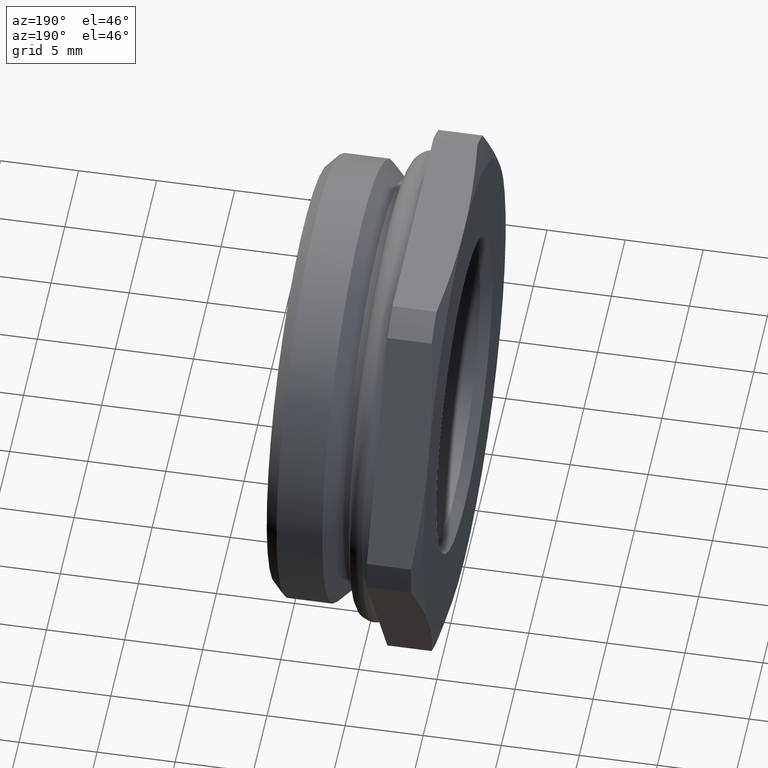
[diagram: clean part render]
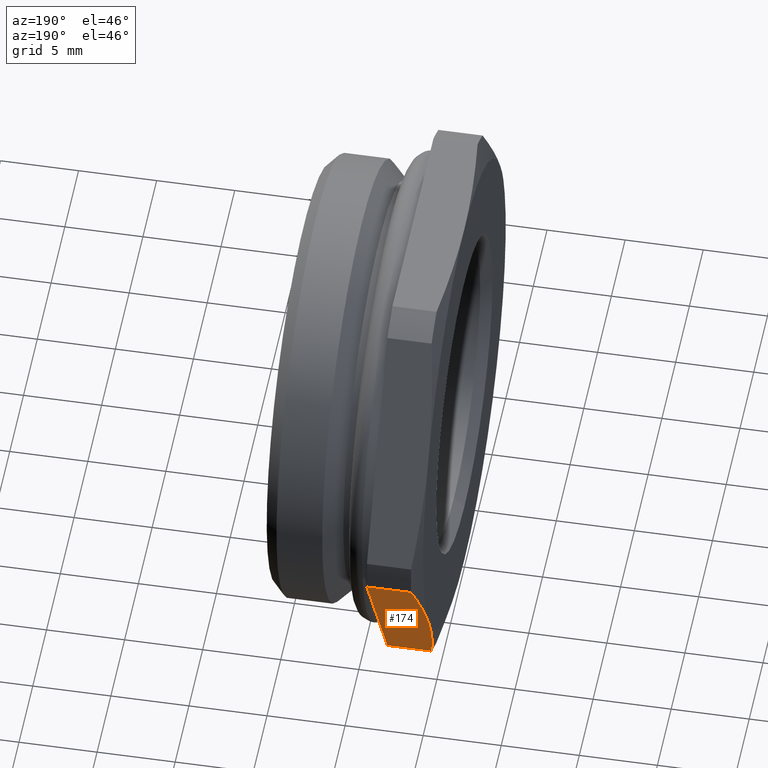
[diagram: same view with one face highlighted and labeled with its STEP entity id]
A machine part, auxiliary view. The second image highlights one B-rep face of the part: STEP entity #174.
In plain terms, the highlighted planar face has unit normal (0, -0.866, 0.5).
Its self-contained STEP definition (entity closure, byte-faithful):
#174 = ADVANCED_FACE( '', ( #214 ), #215, .F. );
#214 = FACE_OUTER_BOUND( '', #289, .T. );
#215 = PLANE( '', #290 );
#289 = EDGE_LOOP( '', ( #399, #400, #401, #402, #403 ) );
#290 = AXIS2_PLACEMENT_3D( '', #404, #405, #406 );
#399 = ORIENTED_EDGE( '', *, *, #591, .F. );
#400 = ORIENTED_EDGE( '', *, *, #590, .F. );
#401 = ORIENTED_EDGE( '', *, *, #592, .F. );
#402 = ORIENTED_EDGE( '', *, *, #593, .F. );
#403 = ORIENTED_EDGE( '', *, *, #594, .F. );
#404 = CARTESIAN_POINT( '', ( 5.00000000000000, 8.66025403784439, -15.0000000000000 ) );
#405 = DIRECTION( '', ( 0.000000000000000, -0.866025403784439, 0.500000000000000 ) );
#406 = DIRECTION( '', ( 0.000000000000000, -0.500000000000000, -0.866025403784439 ) );
#590 = EDGE_CURVE( '', #672, #654, #674, .T. );
#591 = EDGE_CURVE( '', #654, #675, #676, .F. );
#592 = EDGE_CURVE( '', #677, #672, #678, .T. );
#593 = EDGE_CURVE( '', #631, #677, #679, .T. );
#594 = EDGE_CURVE( '', #675, #631, #680, .T. );
#631 = VERTEX_POINT( '', #741 );
#654 = VERTEX_POINT( '', #777 );
#672 = VERTEX_POINT( '', #799 );
#674 = LINE( '', #801, #802 );
#675 = VERTEX_POINT( '', #803 );
#676 = LINE( '', #804, #805 );
#677 = VERTEX_POINT( '', #806 );
#678 = LINE( '', #807, #808 );
#679 = B_SPLINE_CURVE_WITH_KNOTS( '', 3, ( #809, #810, #811, #812, #813, #814 ), .UNSPECIFIED., .F., .F., ( 4, 2, 4 ), ( 0.00745570287079218, 0.0111827157497611, 0.0149097286287300 ), .UNSPECIFIED. );
#680 = B_SPLINE_CURVE_WITH_KNOTS( '', 3, ( #815, #816, #817, #818, #819, #820 ), .UNSPECIFIED., .F., .F., ( 4, 2, 4 ), ( 1.67711285438565E-006, 0.00372868999182328, 0.00745570287079218 ), .UNSPECIFIED. );
#741 = CARTESIAN_POINT( '', ( 0.000000000000000, 12.9903810567666, -7.50000000000000 ) );
#777 = CARTESIAN_POINT( '', ( 3.30000000000000, 16.7173939357355, -1.04462433316233 ) );
#799 = CARTESIAN_POINT( '', ( 3.30000000000000, 9.26336817779770, -13.9553756668377 ) );
#801 = CARTESIAN_POINT( '', ( 3.30000000000000, 17.1778810567666, -0.247037243305328 ) );
#802 = VECTOR( '', #956, 1000.00000000000 );
#803 = CARTESIAN_POINT( '', ( 0.468911086754465, 16.7173939357355, -1.04462433316231 ) );
#804 = CARTESIAN_POINT( '', ( 10.3000000000000, 16.7173939357355, -1.04462433316231 ) );
#805 = VECTOR( '', #957, 1000.00000000000 );
#806 = CARTESIAN_POINT( '', ( 0.468911086754465, 9.26336817779768, -13.9553756668377 ) );
#807 = CARTESIAN_POINT( '', ( 10.3000000000000, 9.26336817779768, -13.9553756668377 ) );
#808 = VECTOR( '', #958, 1000.00000000000 );
#809 = CARTESIAN_POINT( '', ( 3.48613315859472E-016, 12.9903810567666, -7.50000000000000 ) );
#810 = CARTESIAN_POINT( '', ( 3.62106584951213E-016, 12.3692122436051, -8.57589594447294 ) );
#811 = CARTESIAN_POINT( '', ( 0.0419381091522346, 11.7480434304436, -9.65179188894589 ) );
#812 = CARTESIAN_POINT( '', ( 0.202478171409577, 10.5057058041207, -11.8035837778918 ) );
#813 = CARTESIAN_POINT( '', ( 0.320772509595717, 9.88453699095917, -12.8794797223647 ) );
#814 = CARTESIAN_POINT( '', ( 0.468911086754467, 9.26336817779768, -13.9553756668377 ) );
#815 = CARTESIAN_POINT( '', ( 0.468911086754466, 16.7173939357355, -1.04462433316232 ) );
#816 = CARTESIAN_POINT( '', ( 0.320772509595717, 16.0962251225740, -2.12052027763526 ) );
#817 = CARTESIAN_POINT( '', ( 0.202478171409577, 15.4750563094125, -3.19641622210821 ) );
#818 = CARTESIAN_POINT( '', ( 0.0419381091522348, 14.2327186830895, -5.34820811105410 ) );
#819 = CARTESIAN_POINT( '', ( 3.59141969635823E-016, 13.6115498699281, -6.42410405552705 ) );
#820 = CARTESIAN_POINT( '', ( 3.48613315859472E-016, 12.9903810567666, -7.50000000000000 ) );
#956 = DIRECTION( '', ( 0.000000000000000, 0.500000000000000, 0.866025403784439 ) );
#957 = DIRECTION( '', ( 1.00000000000000, -0.000000000000000, -0.000000000000000 ) );
#958 = DIRECTION( '', ( 1.00000000000000, -0.000000000000000, -0.000000000000000 ) );